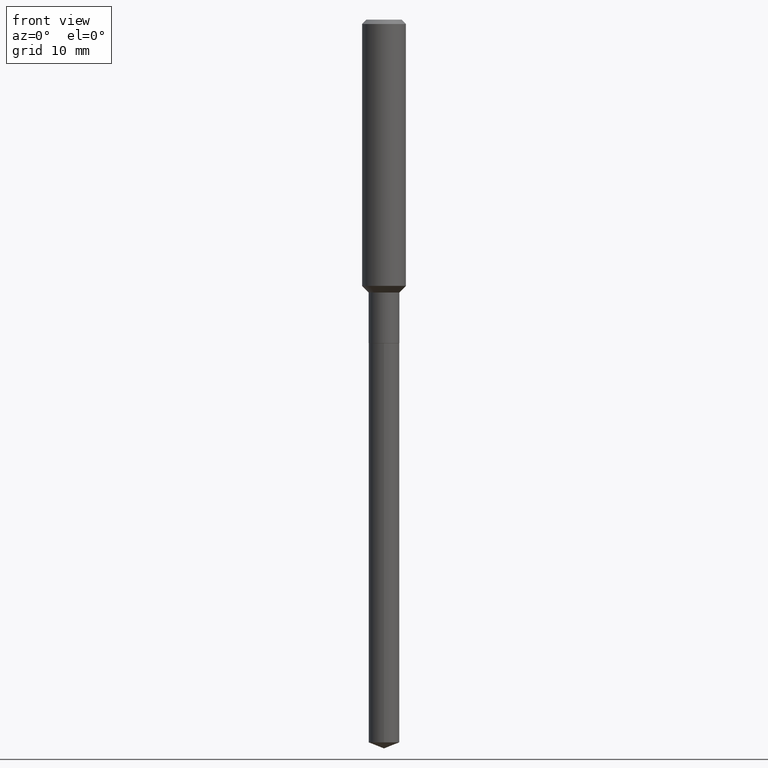
[diagram: clean part render]
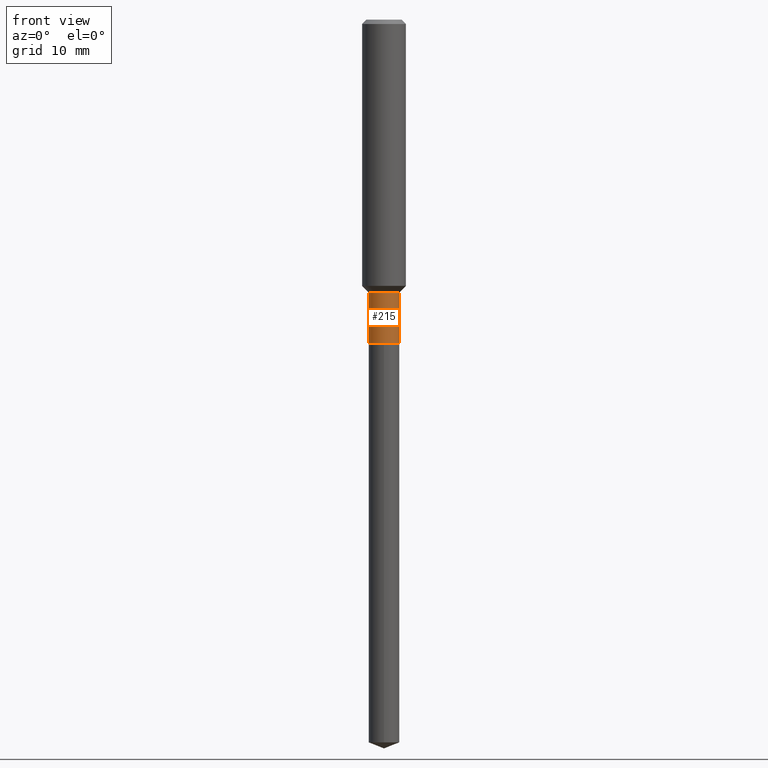
[diagram: same view with one face highlighted and labeled with its STEP entity id]
A machine part, front view. The second image highlights one B-rep face of the part: STEP entity #215.
In plain terms, the highlighted cylindrical surface (edge-blend (fillet) strip) has radius 2.1006 mm, axis along (-0, 0, 1).
Its self-contained STEP definition (entity closure, byte-faithful):
#38 = CYLINDRICAL_SURFACE ( 'NONE', #381, 0.08269999999999998186 ) ;
#52 = EDGE_CURVE ( 'NONE', #103, #366, #191, .T. ) ;
#60 = DIRECTION ( 'NONE',  ( -2.445468806185136877E-29, 3.491481338843145188E-15, 1.000000000000000000 ) ) ;
#67 = DIRECTION ( 'NONE',  ( -2.445468806185136597E-29, 3.491481338843145583E-15, 1.000000000000000000 ) ) ;
#80 = CARTESIAN_POINT ( 'NONE',  ( -0.08269999999999998186, 5.876188424736027248E-16, -4.067959319640806203E-30 ) ) ;
#88 = AXIS2_PLACEMENT_3D ( 'NONE', #406, #217, #372 ) ;
#90 = CARTESIAN_POINT ( 'NONE',  ( -0.08269999999999996798, -5.024413687515927552E-15, -1.471199999999999841 ) ) ;
#93 = CARTESIAN_POINT ( 'NONE',  ( 0.08269999999999999574, -6.664888727717679804E-15, -1.743500000000000050 ) ) ;
#103 = VERTEX_POINT ( 'NONE', #413 ) ;
#118 = DIRECTION ( 'NONE',  ( 1.000000000000000000, -6.982962677686267499E-15, 4.876176775795936353E-29 ) ) ;
#150 = DIRECTION ( 'NONE',  ( -2.445468806185136877E-29, 3.491481338843145188E-15, 1.000000000000000000 ) ) ;
#151 = VECTOR ( 'NONE', #150, 39.37007874015748143 ) ;
#169 = ORIENTED_EDGE ( 'NONE', *, *, #407, .F. ) ;
#191 = CIRCLE ( 'NONE', #88, 0.08269999999999999574 ) ;
#200 = EDGE_CURVE ( 'NONE', #103, #249, #488, .T. ) ;
#215 = ADVANCED_FACE ( 'NONE', ( #306 ), #38, .T. ) ;
#217 = DIRECTION ( 'NONE',  ( -2.445468806185136597E-29, 3.491481338843145583E-15, 1.000000000000000000 ) ) ;
#248 = CARTESIAN_POINT ( 'NONE',  ( 0.08269999999999996798, -5.714158359150689518E-15, -1.471199999999999841 ) ) ;
#249 = VERTEX_POINT ( 'NONE', #90 ) ;
#254 = AXIS2_PLACEMENT_3D ( 'NONE', #330, #67, #473 ) ;
#257 = ORIENTED_EDGE ( 'NONE', *, *, #200, .F. ) ;
#268 = CARTESIAN_POINT ( 'NONE',  ( 0.000000000000000000, 0.000000000000000000, 0.000000000000000000 ) ) ;
#293 = LINE ( 'NONE', #333, #390 ) ;
#306 = FACE_OUTER_BOUND ( 'NONE', #429, .T. ) ;
#330 = CARTESIAN_POINT ( 'NONE',  ( 3.597773707659572310E-29, -5.136667345706035627E-15, -1.471199999999999841 ) ) ;
#333 = CARTESIAN_POINT ( 'NONE',  ( 0.08269999999999998186, -5.774910134446541868E-16, 4.032598193583238570E-30 ) ) ;
#345 = CIRCLE ( 'NONE', #254, 0.08269999999999996798 ) ;
#356 = ORIENTED_EDGE ( 'NONE', *, *, #52, .T. ) ;
#366 = VERTEX_POINT ( 'NONE', #93 ) ;
#372 = DIRECTION ( 'NONE',  ( 1.000000000000000000, -6.982962677686273021E-15, 0.000000000000000000 ) ) ;
#381 = AXIS2_PLACEMENT_3D ( 'NONE', #268, #458, #118 ) ;
#388 = EDGE_CURVE ( 'NONE', #366, #486, #293, .T. ) ;
#390 = VECTOR ( 'NONE', #60, 39.37007874015748143 ) ;
#398 = ORIENTED_EDGE ( 'NONE', *, *, #388, .T. ) ;
#406 = CARTESIAN_POINT ( 'NONE',  ( 4.263674863583785988E-29, -6.087397714273025125E-15, -1.743500000000000050 ) ) ;
#407 = EDGE_CURVE ( 'NONE', #249, #486, #345, .T. ) ;
#413 = CARTESIAN_POINT ( 'NONE',  ( -0.08269999999999999574, -5.024413687515927552E-15, -1.743500000000000050 ) ) ;
#429 = EDGE_LOOP ( 'NONE', ( #257, #356, #398, #169 ) ) ;
#458 = DIRECTION ( 'NONE',  ( -2.445468806185136597E-29, 3.491481338843145583E-15, 1.000000000000000000 ) ) ;
#473 = DIRECTION ( 'NONE',  ( 1.000000000000000000, -6.982962677686263555E-15, 0.000000000000000000 ) ) ;
#486 = VERTEX_POINT ( 'NONE', #248 ) ;
#488 = LINE ( 'NONE', #80, #151 ) ;